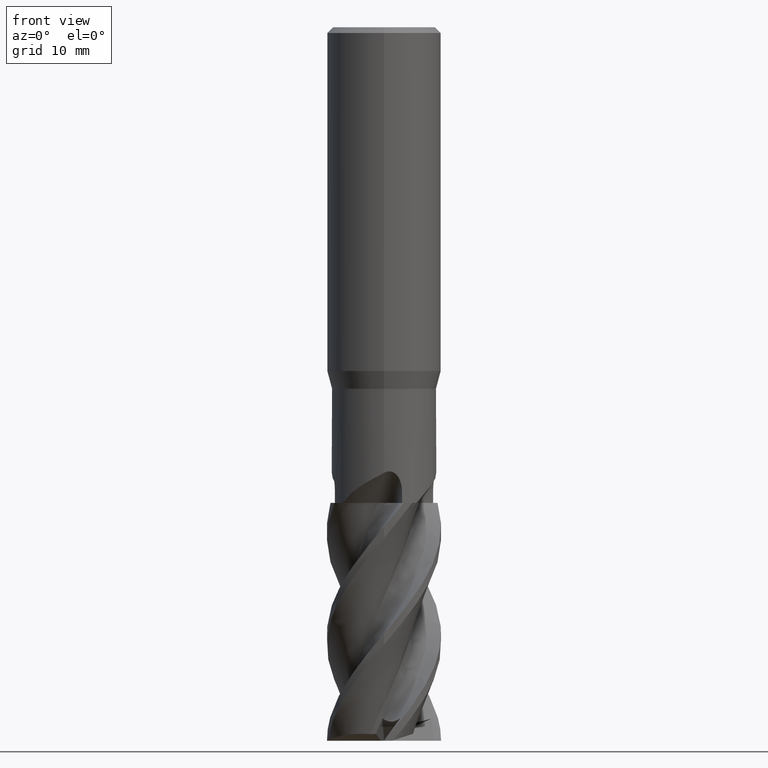
[diagram: clean part render]
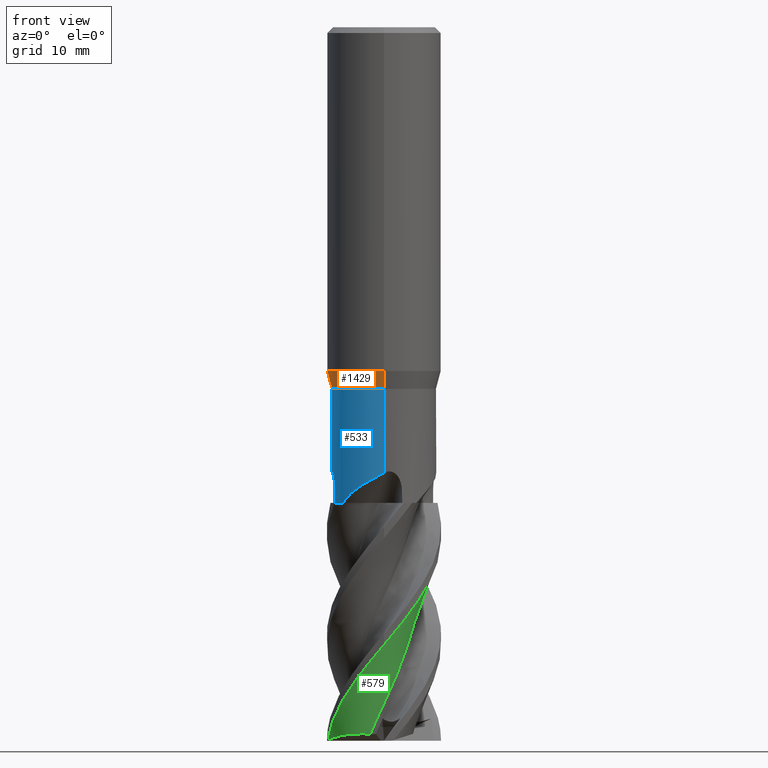
[diagram: same view with three faces highlighted in distinct colors, each labeled with its STEP entity id]
A machine part, front view with three faces highlighted in distinct colors.
Their STEP definitions:

[orange] entity #1429 — the highlighted conical surface has half-angle 15 deg.
#557=EDGE_CURVE('',#1365,#679,#1516,.T.);
#559=VERTEX_POINT('',#1518);
#679=VERTEX_POINT('',#1650);
#809=VERTEX_POINT('',#1795);
#817=EDGE_CURVE('',#559,#1365,#1803,.T.);
#1251=EDGE_CURVE('',#809,#679,#2277,.T.);
#1365=VERTEX_POINT('',#2404);
#1391=EDGE_CURVE('',#809,#559,#2430,.T.);
#1429=ADVANCED_FACE('',(#2470),#2471,.T.);
#1516=LINE('',#3291,#3292);
#1518=CARTESIAN_POINT('',(7.34757689261657E-016,-5.99995,-36.134));
#1650=CARTESIAN_POINT('',(0.0,5.49995,-38.0));
#1795=CARTESIAN_POINT('',(6.73527371570538E-016,-5.49995,-38.0));
#1803=CIRCLE('',#6341,5.99995);
#2277=CIRCLE('',#9145,5.49995);
#2404=CARTESIAN_POINT('',(0.0,5.99995,-36.134));
#2430=LINE('',#10435,#10436);
#2470=FACE_OUTER_BOUND('',#10652,.T.);
#2471=CONICAL_SURFACE('',#10653,5.74995,0.261802791304143);
#3291=CARTESIAN_POINT('',(-7.04142530416098E-016,5.74995,-37.067));
#3292=VECTOR('',#10712,1.0);
#6341=AXIS2_PLACEMENT_3D('',#11045,#11046,#11047);
#9145=AXIS2_PLACEMENT_3D('',#11542,#11543,#11544);
#10435=CARTESIAN_POINT('',(7.04142530416098E-016,-5.74995,-37.067));
#10436=VECTOR('',#11693,1.0);
#10652=EDGE_LOOP('',(#11716,#11717,#11718,#11719));
#10653=AXIS2_PLACEMENT_3D('',#11720,#11721,#11722);
#10712=DIRECTION('',(3.16955473055209E-017,-0.258822332634395,-0.965924945391561));
#11045=CARTESIAN_POINT('',(0.0,0.0,-36.134));
#11046=DIRECTION('',(0.0,0.0,-1.0));
#11047=DIRECTION('',(0.0,1.0,0.0));
#11542=CARTESIAN_POINT('',(0.0,0.0,-38.0));
#11543=DIRECTION('',(0.0,0.0,-1.0));
#11544=DIRECTION('',(0.0,1.0,0.0));
#11693=DIRECTION('',(3.16955473055209E-017,-0.258822332634395,0.965924945391561));
#11716=ORIENTED_EDGE('',*,*,#557,.T.);
#11717=ORIENTED_EDGE('',*,*,#1251,.F.);
#11718=ORIENTED_EDGE('',*,*,#1391,.T.);
#11719=ORIENTED_EDGE('',*,*,#817,.T.);
#11720=CARTESIAN_POINT('',(0.0,0.0,-37.067));
#11721=DIRECTION('',(-0.0,-0.0,1.0));
#11722=DIRECTION('',(0.0,1.0,0.0));

[blue] entity #533 — the highlighted cylindrical surface (partial cylindrical patch) has radius 5.5 mm, axis along (-0, -0, 1).
#501=EDGE_CURVE('',#825,#943,#1456,.T.);
#533=ADVANCED_FACE('',(#1490),#1491,.T.);
#613=VERTEX_POINT('',#1578);
#679=VERTEX_POINT('',#1650);
#703=EDGE_CURVE('',#943,#961,#1676,.T.);
#763=EDGE_CURVE('',#1069,#1011,#1744,.T.);
#795=EDGE_CURVE('',#1407,#1341,#1778,.T.);
#809=VERTEX_POINT('',#1795);
#825=VERTEX_POINT('',#1812);
#871=VERTEX_POINT('',#1861);
#905=EDGE_CURVE('',#1011,#1235,#1896,.T.);
#935=EDGE_CURVE('',#825,#613,#1928,.T.);
#943=VERTEX_POINT('',#1936);
#961=VERTEX_POINT('',#1957);
#979=EDGE_CURVE('',#1235,#613,#1975,.T.);
#1011=VERTEX_POINT('',#2010);
#1019=EDGE_CURVE('',#679,#1069,#2018,.T.);
#1069=VERTEX_POINT('',#2076);
#1121=EDGE_CURVE('',#961,#871,#2136,.T.);
#1217=EDGE_CURVE('',#1407,#871,#2243,.T.);
#1235=VERTEX_POINT('',#2261);
#1251=EDGE_CURVE('',#809,#679,#2277,.T.);
#1341=VERTEX_POINT('',#2375);
#1385=EDGE_CURVE('',#1341,#809,#2424,.T.);
#1407=VERTEX_POINT('',#2446);
#1456=B_SPLINE_CURVE_WITH_KNOTS('',3,(#2492,#2493,#2494,#2495,#2496,#2497,#2498,#2499),.UNSPECIFIED.,.F.,.F.,(4,2,2,4),(0.0,2.05260454001319,4.32936393877745,6.14717379635852),.UNSPECIFIED.);
#1490=FACE_OUTER_BOUND('',#3243,.T.);
#1491=CYLINDRICAL_SURFACE('',#3244,5.49995);
#1578=CARTESIAN_POINT('',(-1.90995452340342,5.15766649959367,-50.000000000002));
#1650=CARTESIAN_POINT('',(0.0,5.49995,-38.0));
#1676=B_SPLINE_CURVE_WITH_KNOTS('',3,(#4495,#4496,#4497,#4498,#4499,#4500,#4501,#4502,#4503,#4504,#4505,#4506,#4507,#4508),.UNSPECIFIED.,.F.,.F.,(4,2,2,2,2,2,4),(0.0,0.438540590585517,0.813840118689192,1.21334795034123,1.75962200363232,2.40906929027821,3.09416935348262),.UNSPECIFIED.);
#1744=B_SPLINE_CURVE_WITH_KNOTS('',3,(#5350,#5351,#5352,#5353,#5354,#5355,#5356,#5357),.UNSPECIFIED.,.F.,.F.,(4,2,2,4),(0.0,2.05260454001306,4.32936393877704,6.14717379635785),.UNSPECIFIED.);
#1778=B_SPLINE_CURVE_WITH_KNOTS('',3,(#5671,#5672,#5673,#5674,#5675,#5676,#5677,#5678),.UNSPECIFIED.,.F.,.F.,(4,2,2,4),(0.0,2.05260454001309,4.32936393877716,6.1471737963582),.UNSPECIFIED.);
#1795=CARTESIAN_POINT('',(6.73527371570538E-016,-5.49995,-38.0));
#1812=CARTESIAN_POINT('',(-3.40309082146235,4.32069703443538,-50.0));
#1861=CARTESIAN_POINT('',(-5.15766649959369,-1.90995452340336,-50.0));
#1896=B_SPLINE_CURVE_WITH_KNOTS('',3,(#6700,#6701,#6702,#6703,#6704,#6705,#6706,#6707,#6708,#6709,#6710,#6711,#6712,#6713),.UNSPECIFIED.,.F.,.F.,(4,2,2,2,2,2,4),(0.0,0.438540590585333,0.813840118688862,1.21334795034092,1.75962200363199,2.4090692902779,3.0941693534823),.UNSPECIFIED.);
#1928=CIRCLE('',#7036,5.49995);
#1936=CARTESIAN_POINT('',(-5.49844950323102,-0.128464247627501,-46.7799553798772));
#1957=CARTESIAN_POINT('',(-5.16624810003383,-1.88661881984592,-48.6801224118467));
#1975=B_SPLINE_CURVE_WITH_KNOTS('',3,(#7592,#7593,#7594,#7595),.UNSPECIFIED.,.F.,.F.,(4,4),(0.0,1.32008462748489),.UNSPECIFIED.);
#2010=CARTESIAN_POINT('',(-0.128464247627529,5.49844950323102,-46.7799553798772));
#2018=LINE('',#7767,#7768);
#2076=CARTESIAN_POINT('',(-2.77925433996061E-015,5.49994999999997,-46.8485761550256));
#2136=B_SPLINE_CURVE_WITH_KNOTS('',3,(#8289,#8290,#8291,#8292),.UNSPECIFIED.,.F.,.F.,(4,4),(0.0,1.32008462749297),.UNSPECIFIED.);
#2243=CIRCLE('',#8930,5.49995);
#2261=CARTESIAN_POINT('',(-1.88661881984595,5.16624810003382,-48.6801224118467));
#2277=CIRCLE('',#9145,5.49995);
#2375=CARTESIAN_POINT('',(4.33356657443583E-015,-5.49994999999999,-46.8485761550256));
#2424=LINE('',#10427,#10428);
#2446=CARTESIAN_POINT('',(-4.32069703443538,-3.40309082146235,-50.0));
#2492=CARTESIAN_POINT('',(-3.40309082146081,4.3206970344366,-50.0000000000019));
#2493=CARTESIAN_POINT('',(-3.78966601178926,4.01622058734344,-49.5246207553543));
#2494=CARTESIAN_POINT('',(-4.15871196733257,3.64320537147406,-49.1153642329935));
#2495=CARTESIAN_POINT('',(-4.8474864475272,2.67264667295675,-48.318435224457));
#2496=CARTESIAN_POINT('',(-5.13239437357896,2.08602911005882,-47.9625082932728));
#2497=CARTESIAN_POINT('',(-5.44672058306722,0.930284828555408,-47.330858510529));
#2498=CARTESIAN_POINT('',(-5.51081452140735,0.400775827371101,-47.0639981679338));
#2499=CARTESIAN_POINT('',(-5.49844950323102,-0.128464247627536,-46.7799553798772));
#3243=EDGE_LOOP('',(#10685,#10686,#10687,#10688,#10689,#10690,#10691,#10692,#10693,#10694,#10695,#10696));
#3244=AXIS2_PLACEMENT_3D('',#10697,#10698,#10699);
#4495=CARTESIAN_POINT('',(-5.49844950323088,-0.12846424763386,-46.7799553801384));
#4496=CARTESIAN_POINT('',(-5.4953011042546,-0.263220128012735,-46.7233904595447));
#4497=CARTESIAN_POINT('',(-5.48696421004083,-0.404945012029347,-46.6891570378781));
#4498=CARTESIAN_POINT('',(-5.45986639133504,-0.674472824829074,-46.6857818872239));
#4499=CARTESIAN_POINT('',(-5.44345431012151,-0.794853074811628,-46.7081008115535));
#4500=CARTESIAN_POINT('',(-5.40373016328144,-1.03174084036335,-46.801883908265));
#4501=CARTESIAN_POINT('',(-5.38108798590281,-1.14163485347547,-46.8740769644606));
#4502=CARTESIAN_POINT('',(-5.32778878251191,-1.37214841981411,-47.0820983841991));
#4503=CARTESIAN_POINT('',(-5.2975547198254,-1.48108462277344,-47.2306448038556));
#4504=CARTESIAN_POINT('',(-5.2408774699199,-1.6716191679484,-47.5772524868296));
#4505=CARTESIAN_POINT('',(-5.21525489996716,-1.74743997293689,-47.7849741002901));
#4506=CARTESIAN_POINT('',(-5.17856161147076,-1.85344704507501,-48.2184200132167));
#4507=CARTESIAN_POINT('',(-5.16784053812715,-1.88225814550732,-48.4497788411469));
#4508=CARTESIAN_POINT('',(-5.16624810006814,-1.886618819752,-48.6801224118474));
#5350=CARTESIAN_POINT('',(4.32069703443661,3.40309082146079,-50.0000000000019));
#5351=CARTESIAN_POINT('',(4.01622058734347,3.78966601178922,-49.5246207553544));
#5352=CARTESIAN_POINT('',(3.64320537147409,4.15871196733255,-49.1153642329935));
#5353=CARTESIAN_POINT('',(2.67264667295679,4.84748644752718,-48.3184352244571));
#5354=CARTESIAN_POINT('',(2.08602911005891,5.13239437357895,-47.9625082932729));
#5355=CARTESIAN_POINT('',(0.930284828555402,5.44672058306723,-47.330858510529));
#5356=CARTESIAN_POINT('',(0.400775827371077,5.51081452140736,-47.0639981679337));
#5357=CARTESIAN_POINT('',(-0.128464247627568,5.49844950323103,-46.7799553798772));
#5671=CARTESIAN_POINT('',(-4.32069703443664,-3.40309082146075,-50.000000000002));
#5672=CARTESIAN_POINT('',(-4.0162205873435,-3.78966601178918,-49.5246207553544));
#5673=CARTESIAN_POINT('',(-3.64320537147412,-4.15871196733252,-49.1153642329935));
#5674=CARTESIAN_POINT('',(-2.67264667295682,-4.84748644752717,-48.3184352244571));
#5675=CARTESIAN_POINT('',(-2.0860291100589,-5.13239437357893,-47.9625082932729));
#5676=CARTESIAN_POINT('',(-0.930284828555461,-5.44672058306721,-47.330858510529));
#5677=CARTESIAN_POINT('',(-0.400775827371127,-5.51081452140735,-47.0639981679338));
#5678=CARTESIAN_POINT('',(0.128464247627541,-5.49844950323102,-46.7799553798772));
#6700=CARTESIAN_POINT('',(-0.128464247633885,5.49844950323088,-46.7799553801384));
#6701=CARTESIAN_POINT('',(-0.263220128012704,5.4953011042546,-46.7233904595448));
#6702=CARTESIAN_POINT('',(-0.404945012029352,5.48696421004082,-46.6891570378781));
#6703=CARTESIAN_POINT('',(-0.674472824829131,5.45986639133502,-46.6857818872239));
#6704=CARTESIAN_POINT('',(-0.794853074811708,5.44345431012149,-46.7081008115536));
#6705=CARTESIAN_POINT('',(-1.03174084036337,5.40373016328144,-46.801883908265));
#6706=CARTESIAN_POINT('',(-1.14163485347548,5.3810879859028,-46.8740769644606));
#6707=CARTESIAN_POINT('',(-1.37214841981414,5.3277887825119,-47.0820983841991));
#6708=CARTESIAN_POINT('',(-1.48108462277348,5.29755471982539,-47.2306448038557));
#6709=CARTESIAN_POINT('',(-1.67161916794843,5.24087746991989,-47.5772524868296));
#6710=CARTESIAN_POINT('',(-1.74743997293692,5.21525489996715,-47.7849741002901));
#6711=CARTESIAN_POINT('',(-1.85344704507503,5.17856161147075,-48.2184200132167));
#6712=CARTESIAN_POINT('',(-1.88225814550734,5.16784053812714,-48.4497788411469));
#6713=CARTESIAN_POINT('',(-1.88661881975203,5.16624810006813,-48.6801224118474));
#7036=AXIS2_PLACEMENT_3D('',#11144,#11145,#11146);
#7592=CARTESIAN_POINT('',(-1.88661881984597,5.16624810003382,-48.6801224118468));
#7593=CARTESIAN_POINT('',(-1.89494737918482,5.1632066632916,-49.1200612821684));
#7594=CARTESIAN_POINT('',(-1.90273135105601,5.16034133921336,-49.5600386199855));
#7595=CARTESIAN_POINT('',(-1.90995452340342,5.15766649959367,-50.000000000002));
#7767=CARTESIAN_POINT('',(-6.73527371570538E-016,5.49995,-44.0));
#7768=VECTOR('',#11209,1.0);
#8289=CARTESIAN_POINT('',(-5.16624810003384,-1.88661881984595,-48.6801224118467));
#8290=CARTESIAN_POINT('',(-5.1632066632916,-1.89494737918485,-49.120061282171));
#8291=CARTESIAN_POINT('',(-5.16034133921337,-1.902731351056,-49.5600386199868));
#8292=CARTESIAN_POINT('',(-5.15766649959368,-1.90995452340339,-50.000000000002));
#8930=AXIS2_PLACEMENT_3D('',#11530,#11531,#11532);
#9145=AXIS2_PLACEMENT_3D('',#11542,#11543,#11544);
#10427=CARTESIAN_POINT('',(6.73527371570538E-016,-5.49995,-44.0));
#10428=VECTOR('',#11692,1.0);
#10685=ORIENTED_EDGE('',*,*,#1019,.T.);
#10686=ORIENTED_EDGE('',*,*,#763,.T.);
#10687=ORIENTED_EDGE('',*,*,#905,.T.);
#10688=ORIENTED_EDGE('',*,*,#979,.T.);
#10689=ORIENTED_EDGE('',*,*,#935,.F.);
#10690=ORIENTED_EDGE('',*,*,#501,.T.);
#10691=ORIENTED_EDGE('',*,*,#703,.T.);
#10692=ORIENTED_EDGE('',*,*,#1121,.T.);
#10693=ORIENTED_EDGE('',*,*,#1217,.F.);
#10694=ORIENTED_EDGE('',*,*,#795,.T.);
#10695=ORIENTED_EDGE('',*,*,#1385,.T.);
#10696=ORIENTED_EDGE('',*,*,#1251,.T.);
#10697=CARTESIAN_POINT('',(0.0,0.0,-44.0));
#10698=DIRECTION('',(-0.0,-0.0,1.0));
#10699=DIRECTION('',(0.0,1.0,0.0));
#11144=CARTESIAN_POINT('',(0.0,0.0,-50.0));
#11145=DIRECTION('',(0.0,0.0,-1.0));
#11146=DIRECTION('',(0.0,1.0,0.0));
#11209=DIRECTION('',(0.0,0.0,-1.0));
#11530=CARTESIAN_POINT('',(0.0,0.0,-50.0));
#11531=DIRECTION('',(0.0,0.0,-1.0));
#11532=DIRECTION('',(0.0,1.0,0.0));
#11542=CARTESIAN_POINT('',(0.0,0.0,-38.0));
#11543=DIRECTION('',(0.0,0.0,-1.0));
#11544=DIRECTION('',(0.0,1.0,0.0));
#11692=DIRECTION('',(-0.0,-0.0,1.0));

[green] entity #579 — the highlighted face is a freeform B-spline surface patch.
#507=EDGE_CURVE('',#1117,#667,#1462,.T.);
#547=VERTEX_POINT('',#1505);
#579=ADVANCED_FACE('',(#1540),#1541,.T.);
#667=VERTEX_POINT('',#1638);
#789=EDGE_CURVE('',#1301,#1039,#1772,.T.);
#843=EDGE_CURVE('',#971,#1117,#1831,.T.);
#875=EDGE_CURVE('',#1219,#547,#1865,.T.);
#971=VERTEX_POINT('',#1967);
#1039=VERTEX_POINT('',#2040);
#1061=EDGE_CURVE('',#667,#1219,#2067,.T.);
#1117=VERTEX_POINT('',#2132);
#1205=EDGE_CURVE('',#547,#1301,#2228,.T.);
#1219=VERTEX_POINT('',#2245);
#1301=VERTEX_POINT('',#2332);
#1419=EDGE_CURVE('',#971,#1039,#2459,.T.);
#1462=B_SPLINE_CURVE_WITH_KNOTS('',3,(#2514,#2515,#2516,#2517,#2518,#2519,#2520,#2521,#2522,#2523,#2524,#2525,#2526,#2527,#2528,#2529,#2530,#2531,#2532,#2533,#2534,#2535,#2536,#2537,#2538,#2539,#2540,#2541,#2542,#2543,#2544,#2545,#2546,#2547,#2548,#2549,#2550,#2551,#2552,#2553,#2554,#2555,#2556,#2557),.UNSPECIFIED.,.F.,.F.,(4,2,2,2,2,2,2,2,2,2,2,2,2,2,2,2,2,2,2,2,2,4),(0.0,1.37749315045641,4.10765177671446,5.30286308602918,7.20437856282853,7.84105240684516,9.36275775460885,11.4937231085125,12.7863763986183,15.3772386576201,16.476150201034,18.9986055672199,20.1458521792717,22.5992008753875,22.8529920299498,24.5194447010195,25.2609514613128,25.7962940672979,26.7250266765858,28.0846197101658,28.7667484867605,29.4599613557266),.UNSPECIFIED.);
#1505=CARTESIAN_POINT('',(5.19273183703704,2.97732271645397,-50.0));
#1540=FACE_OUTER_BOUND('',#3345,.T.);
#1541=B_SPLINE_SURFACE_WITH_KNOTS('',3,3,((#3346,#3347,#3348,#3349,#3350,#3351,#3352,#3353,#3354,#3355,#3356,#3357,#3358,#3359,#3360,#3361,#3362,#3363,#3364,#3365,#3366,#3367,#3368,#3369,#3370,#3371,#3372,#3373,#3374,#3375,#3376,#3377,#3378,#3379,#3380,#3381,#3382,#3383,#3384,#3385,#3386,#3387,#3388,#3389,#3390,#3391,#3392,#3393,#3394,#3395,#3396,#3397,#3398),(#3399,#3400,#3401,#3402,#3403,#3404,#3405,#3406,#3407,#3408,#3409,#3410,#3411,#3412,#3413,#3414,#3415,#3416,#3417,#3418,#3419,#3420,#3421,#3422,#3423,#3424,#3425,#3426,#3427,#3428,#3429,#3430,#3431,#3432,#3433,#3434,#3435,#3436,#3437,#3438,#3439,#3440,#3441,#3442,#3443,#3444,#3445,#3446,#3447,#3448,#3449,#3450,#3451),(#3452,#3453,#3454,#3455,#3456,#3457,#3458,#3459,#3460,#3461,#3462,#3463,#3464,#3465,#3466,#3467,#3468,#3469,#3470,#3471,#3472,#3473,#3474,#3475,#3476,#3477,#3478,#3479,#3480,#3481,#3482,#3483,#3484,#3485,#3486,#3487,#3488,#3489,#3490,#3491,#3492,#3493,#3494,#3495,#3496,#3497,#3498,#3499,#3500,#3501,#3502,#3503,#3504),(#3505,#3506,#3507,#3508,#3509,#3510,#3511,#3512,#3513,#3514,#3515,#3516,#3517,#3518,#3519,#3520,#3521,#3522,#3523,#3524,#3525,#3526,#3527,#3528,#3529,#3530,#3531,#3532,#3533,#3534,#3535,#3536,#3537,#3538,#3539,#3540,#3541,#3542,#3543,#3544,#3545,#3546,#3547,#3548,#3549,#3550,#3551,#3552,#3553,#3554,#3555,#3556,#3557),(#3558,#3559,#3560,#3561,#3562,#3563,#3564,#3565,#3566,#3567,#3568,#3569,#3570,#3571,#3572,#3573,#3574,#3575,#3576,#3577,#3578,#3579,#3580,#3581,#3582,#3583,#3584,#3585,#3586,#3587,#3588,#3589,#3590,#3591,#3592,#3593,#3594,#3595,#3596,#3597,#3598,#3599,#3600,#3601,#3602,#3603,#3604,#3605,#3606,#3607,#3608,#3609,#3610),(#3611,#3612,#3613,#3614,#3615,#3616,#3617,#3618,#3619,#3620,#3621,#3622,#3623,#3624,#3625,#3626,#3627,#3628,#3629,#3630,#3631,#3632,#3633,#3634,#3635,#3636,#3637,#3638,#3639,#3640,#3641,#3642,#3643,#3644,#3645,#3646,#3647,#3648,#3649,#3650,#3651,#3652,#3653,#3654,#3655,#3656,#3657,#3658,#3659,#3660,#3661,#3662,#3663),(#3664,#3665,#3666,#3667,#3668,#3669,#3670,#3671,#3672,#3673,#3674,#3675,#3676,#3677,#3678,#3679,#3680,#3681,#3682,#3683,#3684,#3685,#3686,#3687,#3688,#3689,#3690,#3691,#3692,#3693,#3694,#3695,#3696,#3697,#3698,#3699,#3700,#3701,#3702,#3703,#3704,#3705,#3706,#3707,#3708,#3709,#3710,#3711,#3712,#3713,#3714,#3715,#3716)),.UNSPECIFIED.,.F.,.F.,.F.,(4,1,1,1,4),(4,1,2,1,2,1,2,1,2,1,2,1,2,1,2,1,2,1,2,1,2,1,2,1,2,1,2,1,2,1,2,1,2,1,4),(-1.11221997676373,-0.834164982572797,-0.556109988381865,-0.278054994190932,0.0),(0.0,0.768307459309376,1.53661491861875,2.30492237792813,3.0732298372375,4.60984475585626,6.14645967447501,7.68307459309376,9.21968951171251,10.7563044303313,12.29291934895,13.8295342675688,15.3661491861875,16.9027641048063,18.439379023425,19.9759939420438,21.5126088606625,23.0492237792813,24.5858386979,26.1224536165188,27.6590685351375,29.1956834537563,30.732298372375,32.2689132909938,33.8055282096125,35.3421431282313,36.87875804685,38.4153729654688,39.9519878840875,41.4886028027063,43.025217721325,44.5618326399438,46.0984475585626,47.6350624771813,49.1716773958001),.UNSPECIFIED.);
#1638=CARTESIAN_POINT('',(4.41488359444724E-011,-5.99995970015771,-64.9250394281234));
#1772=B_SPLINE_CURVE_WITH_KNOTS('',3,(#5657,#5658,#5659,#5660,#5661,#5662,#5663,#5664),.UNSPECIFIED.,.F.,.F.,(4,2,2,4),(0.0,1.86474831701816,3.59477893039031,5.32475610849706),.UNSPECIFIED.);
#1831=B_SPLINE_CURVE_WITH_KNOTS('',3,(#6450,#6451,#6452,#6453,#6454,#6455,#6456,#6457,#6458,#6459),.UNSPECIFIED.,.F.,.F.,(4,2,2,2,4),(0.0,1.62662913287,3.21780246267589,4.29854843052144,5.46966036897869),.UNSPECIFIED.);
#1865=B_SPLINE_CURVE_WITH_KNOTS('',3,(#6538,#6539,#6540,#6541,#6542,#6543,#6544,#6545),.UNSPECIFIED.,.F.,.F.,(4,2,2,4),(0.0,1.86474831701816,3.59477893039031,5.32475610849706),.UNSPECIFIED.);
#1967=CARTESIAN_POINT('',(-1.4314609465633,-2.95834227675176,-74.3041753120862));
#2040=CARTESIAN_POINT('',(0.631988441931051,3.22503070359878,-50.0));
#2067=B_SPLINE_CURVE_WITH_KNOTS('',3,(#7836,#7837,#7838,#7839,#7840,#7841,#7842,#7843,#7844,#7845,#7846,#7847,#7848,#7849,#7850,#7851,#7852,#7853,#7854,#7855,#7856,#7857,#7858,#7859,#7860,#7861,#7862,#7863,#7864,#7865,#7866,#7867,#7868,#7869,#7870,#7871,#7872,#7873,#7874,#7875,#7876,#7877,#7878,#7879),.UNSPECIFIED.,.F.,.F.,(4,2,2,2,2,2,2,2,2,2,2,2,2,2,2,2,2,2,2,2,2,4),(0.0,1.37749315045641,4.10765177671446,5.30286308602918,7.20437856282853,7.84105240684516,9.36275775460885,11.4937231085125,12.7863763986183,15.3772386576201,16.476150201034,18.9986055672199,20.1458521792717,22.5992008753875,22.8529920299498,24.5194447010195,25.2609514613128,25.7962940672979,26.7250266765858,28.0846197101658,28.7667484867605,29.4599613557266),.UNSPECIFIED.);
#2132=CARTESIAN_POINT('',(-5.91389867551491,-1.01281755456972,-74.9363146138314));
#2228=B_SPLINE_CURVE_WITH_KNOTS('',3,(#8532,#8533,#8534,#8535,#8536,#8537,#8538,#8539),.UNSPECIFIED.,.F.,.F.,(4,2,2,4),(0.0,1.86474831701816,3.59477893039031,5.32475610849706),.UNSPECIFIED.);
#2245=CARTESIAN_POINT('',(5.21801877183722,2.96160093644537,-50.0));
#2332=CARTESIAN_POINT('',(3.81598190034358,3.55319630982955,-50.0));
#2459=B_SPLINE_CURVE_WITH_KNOTS('',3,(#10555,#10556,#10557,#10558,#10559,#10560,#10561,#10562,#10563,#10564,#10565,#10566,#10567,#10568,#10569,#10570,#10571,#10572,#10573,#10574,#10575,#10576,#10577,#10578,#10579,#10580,#10581,#10582,#10583,#10584,#10585,#10586,#10587,#10588,#10589,#10590,#10591,#10592,#10593,#10594,#10595,#10596,#10597,#10598,#10599,#10600,#10601,#10602,#10603,#10604,#10605,#10606,#10607),.UNSPECIFIED.,.F.,.F.,(4,1,2,1,2,1,2,1,2,1,2,1,2,1,2,1,2,1,2,1,2,1,2,1,2,1,2,1,2,1,2,1,2,1,4),(0.0,0.768307459309376,1.53661491861875,2.30492237792813,3.0732298372375,4.60984475585626,6.14645967447501,7.68307459309376,9.21968951171251,10.7563044303313,12.29291934895,13.8295342675688,15.3661491861875,16.9027641048063,18.439379023425,19.9759939420438,21.5126088606625,23.0492237792813,24.5858386979,26.1224536165188,27.6590685351375,29.1956834537563,30.732298372375,32.2689132909938,33.8055282096125,35.3421431282313,36.87875804685,38.4153729654688,39.9519878840875,41.4886028027063,43.025217721325,44.5618326399438,46.0984475585626,47.6350624771813,49.1716773958001),.UNSPECIFIED.);
#2514=CARTESIAN_POINT('',(-5.92277612579608,-0.959543101533179,-75.0));
#2515=CARTESIAN_POINT('',(-5.87530496678786,-1.25254988680693,-74.6496780853165));
#2516=CARTESIAN_POINT('',(-5.80650935194019,-1.54081016323731,-74.3034074520007));
#2517=CARTESIAN_POINT('',(-5.5347242834975,-2.39144873471892,-73.2360784533484));
#2518=CARTESIAN_POINT('',(-5.2702235142148,-2.92988914654286,-72.5143442297414));
#2519=CARTESIAN_POINT('',(-4.77840208840431,-3.63808033443682,-71.500570073431));
#2520=CARTESIAN_POINT('',(-4.61403818305261,-3.84474757921777,-71.1902800493454));
#2521=CARTESIAN_POINT('',(-4.14688116113043,-4.3571113806385,-70.3616757258024));
#2522=CARTESIAN_POINT('',(-3.82726242182344,-4.64040805817174,-69.8477033140741));
#2523=CARTESIAN_POINT('',(-3.36392995493521,-4.97031698423452,-69.1689747249401));
#2524=CARTESIAN_POINT('',(-3.24438382409105,-5.04919138280623,-68.9989823769693));
#2525=CARTESIAN_POINT('',(-2.82837046095111,-5.3026368202618,-68.4247073736453));
#2526=CARTESIAN_POINT('',(-2.51984811946614,-5.45626672499888,-68.0204133449998));
#2527=CARTESIAN_POINT('',(-1.74342039564066,-5.76168642073547,-67.020260198159));
#2528=CARTESIAN_POINT('',(-1.268390566401,-5.88489123360847,-66.4303721442621));
#2529=CARTESIAN_POINT('',(-0.486121371798172,-5.98765173675094,-65.4980822519184));
#2530=CARTESIAN_POINT('',(-0.189636456627477,-6.00446413919061,-65.1517281193763));
#2531=CARTESIAN_POINT('',(0.711622019900536,-5.98788077977597,-64.0752023077897));
#2532=CARTESIAN_POINT('',(1.31074944180252,-5.88642493016331,-63.344199020911));
#2533=CARTESIAN_POINT('',(2.13152988429419,-5.61447130423478,-62.3271510623217));
#2534=CARTESIAN_POINT('',(2.37143731800115,-5.5176434158059,-62.0233000673752));
#2535=CARTESIAN_POINT('',(3.14950281434029,-5.14218581786756,-60.9911519199748));
#2536=CARTESIAN_POINT('',(3.65188469954842,-4.79923357917633,-60.2595201125533));
#2537=CARTESIAN_POINT('',(4.29816438012782,-4.19541199194893,-59.2199096788925));
#2538=CARTESIAN_POINT('',(4.48827190551416,-3.99177287648694,-58.8919613995155));
#2539=CARTESIAN_POINT('',(5.04502455586107,-3.30317368478145,-57.8324463970487));
#2540=CARTESIAN_POINT('',(5.35403270280949,-2.77620208274149,-57.0983819524417));
#2541=CARTESIAN_POINT('',(5.60227199338773,-2.14887218714385,-56.3079505756887));
#2542=CARTESIAN_POINT('',(5.62503366682092,-2.08864114149168,-56.2323206769027));
#2543=CARTESIAN_POINT('',(5.79314179150729,-1.62022050419552,-55.6454394831727));
#2544=CARTESIAN_POINT('',(5.89386443565268,-1.20152027016965,-55.1290660358205));
#2545=CARTESIAN_POINT('',(5.9738711508175,-0.589878308085498,-54.3877837044071));
#2546=CARTESIAN_POINT('',(5.98961480321692,-0.399971566349683,-54.1594514275878));
#2547=CARTESIAN_POINT('',(6.00107448080089,-0.0713566009432702,-53.7677854560155));
#2548=CARTESIAN_POINT('',(6.00114715071783,0.0670513855631909,-53.6038570123172));
#2549=CARTESIAN_POINT('',(5.98811307008073,0.446665262381291,-53.1571118567217));
#2550=CARTESIAN_POINT('',(5.96543815222129,0.687507065675482,-52.873157115393));
#2551=CARTESIAN_POINT('',(5.87175950914454,1.28464562867237,-52.1517715309372));
#2552=CARTESIAN_POINT('',(5.78444077257275,1.63320261946642,-51.7195593019661));
#2553=CARTESIAN_POINT('',(5.60775227642329,2.1410843425023,-51.0747578337037));
#2554=CARTESIAN_POINT('',(5.54092517716138,2.30861879646048,-50.8594799958195));
#2555=CARTESIAN_POINT('',(5.3905455730287,2.64095486617206,-50.4272261494789));
#2556=CARTESIAN_POINT('',(5.30828690536549,2.80256005101302,-50.2158377443726));
#2557=CARTESIAN_POINT('',(5.21801877183729,2.9616009364453,-50.0));
#3345=EDGE_LOOP('',(#10741,#10742,#10743,#10744,#10745,#10746,#10747));
#3346=CARTESIAN_POINT('',(-0.255456907115684,6.23476878219928,-87.0));
#3347=CARTESIAN_POINT('',(-0.24818962502795,6.23452129636517,-86.7447960134046));
#3348=CARTESIAN_POINT('',(-0.379122830376896,6.23167636541566,-86.2344157903515));
#3349=CARTESIAN_POINT('',(-0.807810325418608,6.19228756367285,-85.724039144369));
#3350=CARTESIAN_POINT('',(-1.37605404217045,6.09068235702555,-85.2135832282896));
#3351=CARTESIAN_POINT('',(-1.89327674262271,5.9586444253405,-84.7031159440314));
#3352=CARTESIAN_POINT('',(-2.31824239959861,5.79526592368941,-84.1926811157864));
#3353=CARTESIAN_POINT('',(-2.89979592085173,5.53978254907979,-83.4270835167761));
#3354=CARTESIAN_POINT('',(-3.64096185824542,5.1207154326029,-82.4062854075879));
#3355=CARTESIAN_POINT('',(-4.30994401933451,4.53315211667518,-81.3854690165651));
#3356=CARTESIAN_POINT('',(-4.92754313796969,3.85273069981532,-80.3646129461837));
#3357=CARTESIAN_POINT('',(-5.45125513216027,3.1272789574805,-79.3437532233732));
#3358=CARTESIAN_POINT('',(-5.80972097332345,2.31623922368928,-78.3229237138696));
#3359=CARTESIAN_POINT('',(-6.08294875186741,1.45465148609144,-77.302097791314));
#3360=CARTESIAN_POINT('',(-6.25723074744914,0.584498879710765,-76.2812627912643));
#3361=CARTESIAN_POINT('',(-6.24710808042734,-0.303867325069469,-75.2604360911737));
#3362=CARTESIAN_POINT('',(-6.13773431351154,-1.2030269094897,-74.2395997614165));
#3363=CARTESIAN_POINT('',(-5.9346818057767,-2.06723273603949,-73.2187573137753));
#3364=CARTESIAN_POINT('',(-5.5568150204803,-2.87063905827029,-72.1979303105098));
#3365=CARTESIAN_POINT('',(-5.0838374594509,-3.64330562384705,-71.1770969230358));
#3366=CARTESIAN_POINT('',(-4.5399883027293,-4.34543864069807,-70.1562563566883));
#3367=CARTESIAN_POINT('',(-3.86240126550242,-4.91940202954699,-69.1354293143347));
#3368=CARTESIAN_POINT('',(-3.11139029044888,-5.42570396546365,-68.1145952549118));
#3369=CARTESIAN_POINT('',(-2.32523286095162,-5.83844689230214,-67.093754312327));
#3370=CARTESIAN_POINT('',(-1.47053091556519,-6.07916501541645,-66.0729273145315));
#3371=CARTESIAN_POINT('',(-0.577012640077334,-6.22784944052524,-65.0520933829256));
#3372=CARTESIAN_POINT('',(0.309611808069769,-6.27681125662408,-64.0312524973728));
#3373=CARTESIAN_POINT('',(1.18708824214252,-6.1408082333425,-63.0104254789602));
#3374=CARTESIAN_POINT('',(2.06161986601423,-5.90497848251103,-61.9895915265731));
#3375=CARTESIAN_POINT('',(2.8884749046431,-5.58130087569318,-60.9687506357341));
#3376=CARTESIAN_POINT('',(3.6302118770026,-5.09315887845937,-59.947923618584));
#3377=CARTESIAN_POINT('',(4.32781703491865,-4.51542270839299,-58.927089659937));
#3378=CARTESIAN_POINT('',(4.94556905493644,-3.8775710612737,-57.9062487685258));
#3379=CARTESIAN_POINT('',(5.41758758130208,-3.12545111576988,-56.8854217404183));
#3380=CARTESIAN_POINT('',(5.81224828262941,-2.310153049746,-55.8645877534202));
#3381=CARTESIAN_POINT('',(6.10929178322409,-1.4733453123942,-54.8437468363206));
#3382=CARTESIAN_POINT('',(6.22630571098211,-0.593130351550053,-53.8229198638471));
#3383=CARTESIAN_POINT('',(6.24671203501039,0.31243147259186,-52.8020860044112));
#3384=CARTESIAN_POINT('',(6.16938473022356,1.19705400589534,-51.7812451748964));
#3385=CARTESIAN_POINT('',(5.91024100601995,2.04639866267765,-50.760417975733));
#3386=CARTESIAN_POINT('',(5.55269669066652,2.87864655197867,-49.7395836393127));
#3387=CARTESIAN_POINT('',(5.11498684646327,3.65117188599569,-48.7187425422277));
#3388=CARTESIAN_POINT('',(4.52652172187685,4.31617626702344,-47.6979162599283));
#3389=CARTESIAN_POINT('',(3.85550275575267,4.92485956015507,-46.6770837126543));
#3390=CARTESIAN_POINT('',(3.13629341720834,5.44589394630914,-45.656243457064));
#3391=CARTESIAN_POINT('',(2.32540783241081,5.80608677852783,-44.635413941153));
#3392=CARTESIAN_POINT('',(1.46371549020366,6.0807764230869,-43.6145754069354));
#3393=CARTESIAN_POINT('',(0.593601218951799,6.25647449538887,-42.5937322253886));
#3394=CARTESIAN_POINT('',(-0.298395046580708,6.24758743041156,-41.5729105570231));
#3395=CARTESIAN_POINT('',(-1.2042902884538,6.13779071617352,-40.5520865116154));
#3396=CARTESIAN_POINT('',(-2.06818079472336,5.93358367146781,-39.5312505559625));
#3397=CARTESIAN_POINT('',(-2.85517775509931,5.56382858185723,-38.5104304073142));
#3398=CARTESIAN_POINT('',(-3.23106430963892,5.33604546708767,-38.0000208165174));
#3399=CARTESIAN_POINT('',(-0.644264769102904,6.02362291025007,-87.0));
#3400=CARTESIAN_POINT('',(-0.636559383736454,6.02256869448884,-86.7447929308865));
#3401=CARTESIAN_POINT('',(-0.762258580480236,6.00976556788334,-86.2345008911166));
#3402=CARTESIAN_POINT('',(-1.17480783433263,5.94435746738438,-85.7242397020338));
#3403=CARTESIAN_POINT('',(-1.71911444149116,5.81056491650841,-85.2136940585559));
#3404=CARTESIAN_POINT('',(-2.2119607448298,5.65027709598019,-84.7031020583765));
#3405=CARTESIAN_POINT('',(-2.61316125927226,5.46510723168188,-84.1926185525412));
#3406=CARTESIAN_POINT('',(-3.15994653591149,5.18063585253551,-83.4270866805369));
#3407=CARTESIAN_POINT('',(-3.850843720898,4.72760649442664,-82.4063776779067));
#3408=CARTESIAN_POINT('',(-4.46134843091758,4.11615464751925,-81.3856080571966));
#3409=CARTESIAN_POINT('',(-5.01640067720894,3.418088177017,-80.3646980238808));
#3410=CARTESIAN_POINT('',(-5.47749483936712,2.68230844249807,-79.3437739181452));
#3411=CARTESIAN_POINT('',(-5.77307423532388,1.87415753978044,-78.322954803578));
#3412=CARTESIAN_POINT('',(-5.98304196031761,1.02245080257417,-77.3021486311697));
#3413=CARTESIAN_POINT('',(-6.09651644899284,0.168748148725281,-76.2813109470448));
#3414=CARTESIAN_POINT('',(-6.03027565659626,-0.690864401800581,-75.2605026339307));
#3415=CARTESIAN_POINT('',(-5.86735396687789,-1.55470447781145,-74.2396604516534));
#3416=CARTESIAN_POINT('',(-5.6158090982956,-2.37867265731249,-73.2187967323816));
#3417=CARTESIAN_POINT('',(-5.19885467694145,-3.1326462677876,-72.1979871055005));
#3418=CARTESIAN_POINT('',(-4.6918267164477,-3.85093645289866,-71.1771551010428));
#3419=CARTESIAN_POINT('',(-4.12056447208833,-4.49630464374027,-70.1562979797893));
#3420=CARTESIAN_POINT('',(-3.42795291312766,-5.0090546288042,-69.1354882345568));
#3421=CARTESIAN_POINT('',(-2.66855453284496,-5.45176267799323,-68.1146539727413));
#3422=CARTESIAN_POINT('',(-1.88103624581397,-5.80149605959748,-67.0937954802329));
#3423=CARTESIAN_POINT('',(-1.03808737750465,-5.9802929181763,-66.0729859191212));
#3424=CARTESIAN_POINT('',(-0.163351535979088,-6.06763959725034,-65.0521520549795));
#3425=CARTESIAN_POINT('',(0.698340528758804,-6.05871455388066,-64.0312937936986));
#3426=CARTESIAN_POINT('',(1.53940813650588,-5.87126467831094,-63.0104841451194));
#3427=CARTESIAN_POINT('',(2.37138066065287,-5.58743969356189,-61.9896502264644));
#3428=CARTESIAN_POINT('',(3.15151529021942,-5.22145943660409,-60.9687919385566));
#3429=CARTESIAN_POINT('',(3.83876567082379,-4.70163829543403,-59.9479823023402));
#3430=CARTESIAN_POINT('',(4.47772237862371,-4.09791698524093,-58.9271483436933));
#3431=CARTESIAN_POINT('',(5.03540447838251,-3.44098683780513,-57.9062900471163));
#3432=CARTESIAN_POINT('',(5.44469987073531,-2.6826780230876,-56.885480369494));
#3433=CARTESIAN_POINT('',(5.77521607501031,-1.86809954211742,-55.8646463487637));
#3434=CARTESIAN_POINT('',(6.00969139060433,-1.03888482068851,-54.8437880042626));
#3435=CARTESIAN_POINT('',(6.06707773788657,-0.179089854505177,-53.82297853644));
#3436=CARTESIAN_POINT('',(6.02943249518574,0.699177220466099,-52.8021448119325));
#3437=CARTESIAN_POINT('',(5.89834013377801,1.55090604455564,-51.7812865988539));
#3438=CARTESIAN_POINT('',(5.59343392244033,2.35690851553406,-50.760476361458));
#3439=CARTESIAN_POINT('',(5.19441746676445,3.14021623475657,-49.7396414178598));
#3440=CARTESIAN_POINT('',(4.72146376579761,3.86049334167646,-48.7187830282669));
#3441=CARTESIAN_POINT('',(4.10936964762662,4.46706551611628,-47.6979758307098));
#3442=CARTESIAN_POINT('',(3.42094802790278,5.01399539235159,-46.677145577219));
#3443=CARTESIAN_POINT('',(2.69137932255211,5.47285091769004,-45.6562872426776));
#3444=CARTESIAN_POINT('',(1.88326901184778,5.77012123486869,-44.6354696690374));
#3445=CARTESIAN_POINT('',(1.03136759463036,5.9815032762112,-43.6146246582556));
#3446=CARTESIAN_POINT('',(0.177612375294721,6.09635166590034,-42.593767519821));
#3447=CARTESIAN_POINT('',(-0.685601543005372,6.03109689602283,-41.5729769428281));
#3448=CARTESIAN_POINT('',(-1.55596043483738,5.86737487670174,-40.5521648385855));
#3449=CARTESIAN_POINT('',(-2.37955616654289,5.61473102260134,-39.5312979560088));
#3450=CARTESIAN_POINT('',(-3.11807079620751,5.20659589049804,-38.5104784667984));
#3451=CARTESIAN_POINT('',(-3.46758207478382,4.96212906355335,-38.0000729913183));
#3452=CARTESIAN_POINT('',(-1.36278193073814,5.49260081809676,-87.0));
#3453=CARTESIAN_POINT('',(-1.35397473701795,5.49005576346828,-86.7447872227641));
#3454=CARTESIAN_POINT('',(-1.46642108189552,5.45880125177212,-86.234658479114));
#3455=CARTESIAN_POINT('',(-1.83941775420694,5.34587116425016,-85.7246110895127));
#3456=CARTESIAN_POINT('',(-2.32684958558498,5.15440258301631,-85.2138992922022));
#3457=CARTESIAN_POINT('',(-2.76304391722341,4.94443611639757,-84.7030763451614));
#3458=CARTESIAN_POINT('',(-3.1106214114347,4.72233298619533,-84.192502698816));
#3459=CARTESIAN_POINT('',(-3.57976560807039,4.3896134988172,-83.4270925401637));
#3460=CARTESIAN_POINT('',(-4.16063100841009,3.88272356458002,-82.4065485438996));
#3461=CARTESIAN_POINT('',(-4.64750501342466,3.23985360815511,-81.3858655246386));
#3462=CARTESIAN_POINT('',(-5.0725344896571,2.5239935860348,-80.3648555736904));
#3463=CARTESIAN_POINT('',(-5.40551060050867,1.78507351349183,-79.3438122275737));
#3464=CARTESIAN_POINT('',(-5.57613151944842,1.00028971000923,-78.3230123953023));
#3465=CARTESIAN_POINT('',(-5.66234944157906,0.186038176821416,-77.3022427547619));
#3466=CARTESIAN_POINT('',(-5.65881625758303,-0.617758014077386,-76.2814001343674));
#3467=CARTESIAN_POINT('',(-5.48838750274791,-1.4041696144441,-75.2606258497167));
#3468=CARTESIAN_POINT('',(-5.22825457893548,-2.18239660532418,-74.2397728430451));
#3469=CARTESIAN_POINT('',(-4.89098462537873,-2.91232998870674,-73.2188697339932));
#3470=CARTESIAN_POINT('',(-4.40968558073987,-3.55651019481999,-72.1980922563464));
#3471=CARTESIAN_POINT('',(-3.84976970277809,-4.15652905563145,-71.1772628545917));
#3472=CARTESIAN_POINT('',(-3.23956157131417,-4.68070579776096,-70.1563750033405));
#3473=CARTESIAN_POINT('',(-2.53402424510905,-5.066832804293,-69.1355974271993));
#3474=CARTESIAN_POINT('',(-1.77563954219516,-5.38001354311114,-68.1147626195941));
#3475=CARTESIAN_POINT('',(-1.00302381365668,-5.60335366344039,-67.0938717466774));
#3476=CARTESIAN_POINT('',(-0.200899663083599,-5.66160172439233,-66.0730944619905));
#3477=CARTESIAN_POINT('',(0.619116689175123,-5.63153274790492,-65.0522606823519));
#3478=CARTESIAN_POINT('',(1.41475522558078,-5.51381364689661,-64.0313702532546));
#3479=CARTESIAN_POINT('',(2.16861890548017,-5.23365909911621,-63.0105928260725));
#3480=CARTESIAN_POINT('',(2.90205302077809,-4.86575259813717,-61.9897588813128));
#3481=CARTESIAN_POINT('',(3.57691929866043,-4.42823934186155,-60.9688684273201));
#3482=CARTESIAN_POINT('',(4.14634122236263,-3.86030341740301,-59.9480910056013));
#3483=CARTESIAN_POINT('',(4.66073881842217,-3.22101877475551,-58.9272569789361));
#3484=CARTESIAN_POINT('',(5.09295084630381,-2.54273553719605,-57.9063664789291));
#3485=CARTESIAN_POINT('',(5.37507533945071,-1.7895936444363,-56.8855889853762));
#3486=CARTESIAN_POINT('',(5.57751035521304,-0.994395878751482,-55.8647548064188));
#3487=CARTESIAN_POINT('',(5.68897952009767,-0.197867111278192,-54.8438642717224));
#3488=CARTESIAN_POINT('',(5.63282843750387,0.604411751940193,-53.8230871657392));
#3489=CARTESIAN_POINT('',(5.48672045122994,1.41185474100154,-52.8022537296478));
#3490=CARTESIAN_POINT('',(5.25730410335151,2.18276110095035,-51.7813632865298));
#3491=CARTESIAN_POINT('',(4.873000620575,2.8892835649373,-50.7605845001276));
#3492=CARTESIAN_POINT('',(4.40473304259362,3.56311596410755,-49.73974838957));
#3493=CARTESIAN_POINT('',(3.87590933955976,4.16904402838513,-48.7188580224402));
#3494=CARTESIAN_POINT('',(3.2329035259205,4.65214856555732,-47.6980861177592));
#3495=CARTESIAN_POINT('',(2.52695116647872,5.07071033809154,-46.6772601613969));
#3496=CARTESIAN_POINT('',(1.79405661447928,5.40231689743965,-45.6563683086654));
#3497=CARTESIAN_POINT('',(1.00909637150179,5.57452487155745,-44.6355728703633));
#3498=CARTESIAN_POINT('',(0.194483333754041,5.66203679028418,-43.6147158550516));
#3499=CARTESIAN_POINT('',(-0.609535427978694,5.6597677498065,-42.5938329187393));
#3500=CARTESIAN_POINT('',(-1.3994212058307,5.48983392775552,-41.5730997973291));
#3501=CARTESIAN_POINT('',(-2.18362778839757,5.22820656414846,-40.5523099598976));
#3502=CARTESIAN_POINT('',(-2.91309002276944,4.88996471729979,-39.5313856921503));
#3503=CARTESIAN_POINT('',(-3.54390981480184,4.41863427407539,-38.5105674614751));
#3504=CARTESIAN_POINT('',(-3.83600670259783,4.14817902933257,-38.0001696074348));
#3505=CARTESIAN_POINT('',(-2.18052754521096,4.43078516068051,-87.0));
#3506=CARTESIAN_POINT('',(-2.16951720697794,4.42654337991509,-86.7447806884539));
#3507=CARTESIAN_POINT('',(-2.25524977880597,4.37413132566905,-86.2348388741737));
#3508=CARTESIAN_POINT('',(-2.55162724984047,4.20894100402673,-85.725036227225));
#3509=CARTESIAN_POINT('',(-2.93327293354587,3.95769855824277,-85.2141342282759));
#3510=CARTESIAN_POINT('',(-3.26729554121201,3.69940203797466,-84.7030469101806));
#3511=CARTESIAN_POINT('',(-3.52231842528661,3.44610578966421,-84.1923700790939));
#3512=CARTESIAN_POINT('',(-3.85960490843518,3.07576221592568,-83.4270992455014));
#3513=CARTESIAN_POINT('',(-4.25958061794819,2.53649007429345,-82.4067441386528));
#3514=CARTESIAN_POINT('',(-4.55519066403538,1.89920882568294,-81.386160257245));
#3515=CARTESIAN_POINT('',(-4.78534623156464,1.21122187905253,-80.3650359225455));
#3516=CARTESIAN_POINT('',(-4.93222953659021,0.520526640037339,-79.3438560889412));
#3517=CARTESIAN_POINT('',(-4.93222992443728,-0.179098565209988,-78.3230783097202));
#3518=CARTESIAN_POINT('',(-4.85537164119975,-0.888368230525458,-77.302350512964));
#3519=CARTESIAN_POINT('',(-4.70361427593992,-1.57199883259345,-76.2815022224304));
#3520=CARTESIAN_POINT('',(-4.41304456007484,-2.20992317121059,-75.2607668999379));
#3521=CARTESIAN_POINT('',(-4.04794485161313,-2.82463216484678,-74.2399014987278));
#3522=CARTESIAN_POINT('',(-3.62574377807752,-3.38362955209595,-73.2189532905667));
#3523=CARTESIAN_POINT('',(-3.09684195161069,-3.84294694415684,-72.1982126478264));
#3524=CARTESIAN_POINT('',(-2.50933958323546,-4.25059181551267,-71.177386180527));
#3525=CARTESIAN_POINT('',(-1.89285757403886,-4.58392331698869,-70.1564632116128));
#3526=CARTESIAN_POINT('',(-1.22081479747448,-4.78208472621012,-69.1357223707619));
#3527=CARTESIAN_POINT('',(-0.517226991733261,-4.90885041078421,-68.1148870427848));
#3528=CARTESIAN_POINT('',(0.181848708469698,-4.95601499941238,-67.0939590305666));
#3529=CARTESIAN_POINT('',(0.87544882849854,-4.85719153745078,-66.0732187024776));
#3530=CARTESIAN_POINT('',(1.5681891993242,-4.68029170944836,-65.0523850425036));
#3531=CARTESIAN_POINT('',(2.22375340248011,-4.43284465679748,-64.0314577888883));
#3532=CARTESIAN_POINT('',(2.81366008327091,-4.05487877670652,-63.0107172040133));
#3533=CARTESIAN_POINT('',(3.3703388619246,-3.60626623941885,-61.9898832935343));
#3534=CARTESIAN_POINT('',(3.86390944581693,-3.10891834789346,-60.9689559846998));
#3535=CARTESIAN_POINT('',(4.24356155383957,-2.52009839387484,-59.9482154118476));
#3536=CARTESIAN_POINT('',(4.56364917347276,-1.88080565136722,-58.9273813659453));
#3537=CARTESIAN_POINT('',(4.80608851110105,-1.22338647801616,-57.9064539721368));
#3538=CARTESIAN_POINT('',(4.90690700576723,-0.530061946638324,-56.8857132923161));
#3539=CARTESIAN_POINT('',(4.93257577253366,0.184441418729426,-55.8648789894178));
#3540=CARTESIAN_POINT('',(4.88007762374477,0.883173787884316,-54.8439515613004));
#3541=CARTESIAN_POINT('',(4.68384123035859,1.55573970036388,-53.8232115197049));
#3542=CARTESIAN_POINT('',(4.41044757684606,2.21636364759969,-52.8023784076324));
#3543=CARTESIAN_POINT('',(4.07248678540754,2.83020390145736,-51.7814510703253));
#3544=CARTESIAN_POINT('',(3.61462167714028,3.36054167230091,-50.7607082977438));
#3545=CARTESIAN_POINT('',(3.09154310449547,3.84794974811125,-49.7398708346265));
#3546=CARTESIAN_POINT('',(2.52921646732447,4.26593345246718,-48.7189438620703));
#3547=CARTESIAN_POINT('',(1.8924626761336,4.55821776450158,-47.6982123911057));
#3548=CARTESIAN_POINT('',(1.21408114983476,4.78440055593996,-46.6773913042205));
#3549=CARTESIAN_POINT('',(0.528785966140917,4.93109151670907,-45.6564611374976));
#3550=CARTESIAN_POINT('',(-0.171285943112382,4.93243975612421,-44.635690971662));
#3551=CARTESIAN_POINT('',(-0.881108212908695,4.85663324979944,-43.6148202865298));
#3552=CARTESIAN_POINT('',(-1.56516140234087,4.70591170474056,-42.5939077371611));
#3553=CARTESIAN_POINT('',(-2.20617423534244,4.41518090972931,-41.5732404870772));
#3554=CARTESIAN_POINT('',(-2.82579924289987,4.04780763890839,-40.55247602932));
#3555=CARTESIAN_POINT('',(-3.38423542267663,3.62485861317801,-39.5314861503655));
#3556=CARTESIAN_POINT('',(-3.83369268369233,3.10671904291762,-38.510669342378));
#3557=CARTESIAN_POINT('',(-4.03227292942023,2.82241889405212,-38.0002802065128));
#3558=CARTESIAN_POINT('',(-2.67543318983508,3.18529216413257,-87.0));
#3559=CARTESIAN_POINT('',(-2.66183859916031,3.1800235133001,-86.7447766841444));
#3560=CARTESIAN_POINT('',(-2.71607598002662,3.11459854604359,-86.2349494268253));
#3561=CARTESIAN_POINT('',(-2.92443229911408,2.92018457765295,-85.7252967656934));
#3562=CARTESIAN_POINT('',(-3.18794749137707,2.64049896327807,-85.2142782059848));
#3563=CARTESIAN_POINT('',(-3.41045628146354,2.36377160178563,-84.7030288711299));
#3564=CARTESIAN_POINT('',(-3.5679168245382,2.10588373788836,-84.1922888049446));
#3565=CARTESIAN_POINT('',(-3.76808190182586,1.73555220823058,-83.4271033551061));
#3566=CARTESIAN_POINT('',(-3.98522573600053,1.21479062657387,-82.4068640072537));
#3567=CARTESIAN_POINT('',(-4.098449967596,0.635380310691039,-81.3863408766366));
#3568=CARTESIAN_POINT('',(-4.14886488198471,0.0276838339536158,-80.3651464496005));
#3569=CARTESIAN_POINT('',(-4.13003743800164,-0.565560824935499,-79.343882964785));
#3570=CARTESIAN_POINT('',(-3.98934258262393,-1.13646661503679,-78.3231187092182));
#3571=CARTESIAN_POINT('',(-3.78448465913689,-1.70002549631469,-77.302416546092));
#3572=CARTESIAN_POINT('',(-3.52317689402738,-2.22742109839212,-76.2815647887408));
#3573=CARTESIAN_POINT('',(-3.15783519743715,-2.68958435397209,-75.2608533388735));
#3574=CARTESIAN_POINT('',(-2.73668055752876,-3.11824360422632,-74.2399803449513));
#3575=CARTESIAN_POINT('',(-2.27972692343589,-3.48955731499405,-73.219004497715));
#3576=CARTESIAN_POINT('',(-1.75579006703037,-3.7580446406315,-72.198286424821));
#3577=CARTESIAN_POINT('',(-1.19456198311254,-3.97313058335873,-71.1774617620437));
#3578=CARTESIAN_POINT('',(-0.624428907367322,-4.12122298123691,-70.1565172662221));
#3579=CARTESIAN_POINT('',(-0.0361860641984579,-4.14782969407694,-69.1357989424011));
#3580=CARTESIAN_POINT('',(0.563543020076127,-4.11037863416167,-68.1149632917671));
#3581=CARTESIAN_POINT('',(1.14354703904729,-4.00831728982586,-67.0940125221004));
#3582=CARTESIAN_POINT('',(1.68967834405831,-3.78824052017127,-66.0732948413799));
#3583=CARTESIAN_POINT('',(2.21972878480277,-3.50508174200582,-65.0524612547224));
#3584=CARTESIAN_POINT('',(2.70499042291296,-3.17133472040718,-64.0315114269576));
#3585=CARTESIAN_POINT('',(3.11038917983822,-2.74431508915867,-63.0107934407756));
#3586=CARTESIAN_POINT('',(3.47494809134791,-2.26661010005408,-61.9899595240395));
#3587=CARTESIAN_POINT('',(3.77776141522202,-1.76148592591203,-60.9690096513169));
#3588=CARTESIAN_POINT('',(3.96919843889378,-1.20467057455571,-59.9482916491323));
#3589=CARTESIAN_POINT('',(4.10243503341174,-0.618702930655265,-58.9274575978227));
#3590=CARTESIAN_POINT('',(4.168115250639,-0.0334341878712716,-57.9065076020388));
#3591=CARTESIAN_POINT('',(4.11100785294518,0.552606226584222,-56.8857894466953));
#3592=CARTESIAN_POINT('',(3.98884633879544,1.14099612781922,-55.8649551183127));
#3593=CARTESIAN_POINT('',(3.80551943074461,1.70068267436312,-54.8440050427463));
#3594=CARTESIAN_POINT('',(3.51017949886932,2.21006673502586,-53.8232877282024));
#3595=CARTESIAN_POINT('',(3.154685607998,2.69457273468467,-52.8024548145884));
#3596=CARTESIAN_POINT('',(2.75545874155782,3.12758541408079,-51.7815048673328));
#3597=CARTESIAN_POINT('',(2.2752146174648,3.4683129871506,-50.7607841651839));
#3598=CARTESIAN_POINT('',(1.75059817931167,3.76141096971161,-49.739945873258));
#3599=CARTESIAN_POINT('',(1.2076407504159,3.98947139750629,-48.7189964544733));
#3600=CARTESIAN_POINT('',(0.629273955834043,4.09997866472046,-47.6982898019809));
#3601=CARTESIAN_POINT('',(0.0302074531245402,4.14873695964278,-46.6774716469373));
#3602=CARTESIAN_POINT('',(-0.558561713423448,4.13067751284883,-45.6565180111309));
#3603=CARTESIAN_POINT('',(-1.13010844124042,3.99102630757022,-44.6357634046254));
#3604=CARTESIAN_POINT('',(-1.69433720189887,3.78693478835854,-43.6148842293968));
#3605=CARTESIAN_POINT('',(-2.22228505305201,3.52638838778276,-42.5939536355265));
#3606=CARTESIAN_POINT('',(-2.68698589037518,3.16036065808675,-41.5733266689573));
#3607=CARTESIAN_POINT('',(-3.11932454666286,2.73647515834355,-40.5525778401178));
#3608=CARTESIAN_POINT('',(-3.49005193652718,2.27901364216281,-39.5315476869427));
#3609=CARTESIAN_POINT('',(-3.75226282336349,1.76564149221192,-38.5107317962693));
#3610=CARTESIAN_POINT('',(-3.85711725264324,1.49369586579198,-38.0003479854683));
#3611=CARTESIAN_POINT('',(-2.76473099529926,2.29630774899393,-87.0));
#3612=CARTESIAN_POINT('',(-2.7492918653044,2.29085381736988,-86.7447759065072));
#3613=CARTESIAN_POINT('',(-2.78095804589102,2.22285146699968,-86.2349708898883));
#3614=CARTESIAN_POINT('',(-2.92754110775616,2.02581400951577,-85.7253473496484));
#3615=CARTESIAN_POINT('',(-3.1101246840701,1.74951596253254,-85.2143061577811));
#3616=CARTESIAN_POINT('',(-3.25777588033756,1.481383411308,-84.7030253694393));
#3617=CARTESIAN_POINT('',(-3.35185514507638,1.23840834196205,-84.1922730257926));
#3618=CARTESIAN_POINT('',(-3.46412273064992,0.893180939551142,-83.4271041529541));
#3619=CARTESIAN_POINT('',(-3.56745273518009,0.417747784653968,-82.4068872761772));
#3620=CARTESIAN_POINT('',(-3.57435292465483,-0.0911843737126297,-81.3863759499347));
#3621=CARTESIAN_POINT('',(-3.52424273379556,-0.614515073508065,-80.3651679016193));
#3622=CARTESIAN_POINT('',(-3.41702455419027,-1.11496152384491,-79.3438881897823));
#3623=CARTESIAN_POINT('',(-3.20969771448745,-1.57760309975518,-78.3231265449491));
#3624=CARTESIAN_POINT('',(-2.94945595736205,-2.02432928743993,-77.3024293739711));
#3625=CARTESIAN_POINT('',(-2.64651715131869,-2.43152244125333,-76.2815769315464));
#3626=CARTESIAN_POINT('',(-2.26541233323779,-2.76733160258787,-75.2608701216003));
#3627=CARTESIAN_POINT('',(-1.8423759445524,-3.06646701136336,-74.2399956519021));
#3628=CARTESIAN_POINT('',(-1.39749516830525,-3.31110830603563,-73.2190144443186));
#3629=CARTESIAN_POINT('',(-0.911667388186554,-3.45817550473253,-72.198300739525));
#3630=CARTESIAN_POINT('',(-0.402524819501857,-3.55463315351336,-71.1774764448988));
#3631=CARTESIAN_POINT('',(0.103993865638431,-3.59246365395399,-70.1565277476295));
#3632=CARTESIAN_POINT('',(0.607119487540867,-3.5244350818835,-69.1358138259847));
#3633=CARTESIAN_POINT('',(1.11021594392631,-3.40072381725324,-68.1149780779057));
#3634=CARTESIAN_POINT('',(1.58657897775397,-3.22479626954896,-67.0940229155859));
#3635=CARTESIAN_POINT('',(2.01598537395321,-2.95398205615253,-66.0733096244599));
#3636=CARTESIAN_POINT('',(2.42229792458107,-2.63248357761131,-65.0524760502101));
#3637=CARTESIAN_POINT('',(2.78259468416408,-2.27458455825599,-64.0315218538894));
#3638=CARTESIAN_POINT('',(3.06073935118625,-1.84988897460838,-63.0108082163793));
#3639=CARTESIAN_POINT('',(3.29681800953521,-1.38869712030087,-61.9899743495499));
#3640=CARTESIAN_POINT('',(3.47592593640779,-0.913501086947844,-60.9690200541573));
#3641=CARTESIAN_POINT('',(3.552568011175,-0.411649575956633,-59.9483064576247));
#3642=CARTESIAN_POINT('',(3.57578620754446,0.105936705590095,-58.9274723908138));
#3643=CARTESIAN_POINT('',(3.54136278020035,0.612603419693267,-57.906518011722));
#3644=CARTESIAN_POINT('',(3.40265477794176,1.10096679529996,-56.8858042439499));
#3645=CARTESIAN_POINT('',(3.20881052389145,1.58145711287891,-55.8649698864573));
#3646=CARTESIAN_POINT('',(2.96706637108852,2.02806564624781,-54.844015427873));
#3647=CARTESIAN_POINT('',(2.63806363153801,2.41470609398261,-53.8233025322971));
#3648=CARTESIAN_POINT('',(2.26217428318155,2.77128800167083,-52.8024696403687));
#3649=CARTESIAN_POINT('',(1.8567693438466,3.0771706703786,-51.7815153519915));
#3650=CARTESIAN_POINT('',(1.39688256109758,3.29225550496459,-50.7607988228409));
#3651=CARTESIAN_POINT('',(0.906843579422621,3.46051237302861,-49.7399605136022));
#3652=CARTESIAN_POINT('',(0.411062882766816,3.57037026089683,-48.7190066597249));
#3653=CARTESIAN_POINT('',(-0.096606343705177,3.57503818504633,-47.6983047701835));
#3654=CARTESIAN_POINT('',(-0.612356284631024,3.52457758746058,-46.6774873061631));
#3655=CARTESIAN_POINT('',(-1.10909568747081,3.4185738026566,-45.6565290509934));
#3656=CARTESIAN_POINT('',(-1.57244704100035,3.21206005953842,-44.635777410409));
#3657=CARTESIAN_POINT('',(-2.01986604667802,2.95238030810577,-43.614896700618));
#3658=CARTESIAN_POINT('',(-2.42764434508971,2.65000319874179,-42.5939624956921));
#3659=CARTESIAN_POINT('',(-2.76554183841071,2.26797666803788,-41.5733434458344));
#3660=CARTESIAN_POINT('',(-3.0674802702459,1.84214259590163,-40.5525975615381));
#3661=CARTESIAN_POINT('',(-3.31156306625249,1.39691243511551,-39.5315596650558));
#3662=CARTESIAN_POINT('',(-3.4546149494507,0.920866818588463,-38.5107439045004));
#3663=CARTESIAN_POINT('',(-3.50164897224289,0.673994889901851,-38.0003611445809));
#3664=CARTESIAN_POINT('',(-2.74755851295048,1.85420002610789,-87.0));
#3665=CARTESIAN_POINT('',(-2.73120206237237,1.84878172540933,-86.7447760054635));
#3666=CARTESIAN_POINT('',(-2.75162191444611,1.78106329023959,-86.2349681617698));
#3667=CARTESIAN_POINT('',(-2.86772967180338,1.58697561655229,-85.7253409192144));
#3668=CARTESIAN_POINT('',(-3.01085436062905,1.31788923564963,-85.2143026051172));
#3669=CARTESIAN_POINT('',(-3.12238265761772,1.05910557691013,-84.7030258145124));
#3670=CARTESIAN_POINT('',(-3.18640063223969,0.827790870518922,-84.1922750312172));
#3671=CARTESIAN_POINT('',(-3.25728239691073,0.500903286084987,-83.4271040522304));
#3672=CARTESIAN_POINT('',(-3.30790343384116,0.0555058726822439,-82.4068843194257));
#3673=CARTESIAN_POINT('',(-3.26749264979887,-0.411570040353753,-81.386371488716));
#3674=CARTESIAN_POINT('',(-3.17386785421668,-0.886631291137949,-80.365165177604));
#3675=CARTESIAN_POINT('',(-3.02966442112961,-1.33550496431987,-79.3438875225886));
#3676=CARTESIAN_POINT('',(-2.79708411018401,-1.74048100468148,-78.3231255520743));
#3677=CARTESIAN_POINT('',(-2.51769292281271,-2.12611082952933,-77.3024277401863));
#3678=CARTESIAN_POINT('',(-2.20258055719289,-2.47149816236964,-76.2815753890753));
#3679=CARTESIAN_POINT('',(-1.82241043662574,-2.74425858330633,-75.2608679892927));
#3680=CARTESIAN_POINT('',(-1.40733394775702,-2.9797427065694,-74.2399937051212));
#3681=CARTESIAN_POINT('',(-0.977061270501704,-3.16308814297799,-73.2190131795188));
#3682=CARTESIAN_POINT('',(-0.518250294120214,-3.25322092492959,-72.1982989218076));
#3683=CARTESIAN_POINT('',(-0.0427875199091746,-3.29507186659064,-71.1774745765832));
#3684=CARTESIAN_POINT('',(0.424971051543218,-3.28318942915852,-70.1565264215706));
#3685=CARTESIAN_POINT('',(0.879862616617872,-3.17458632404401,-69.1358119233793));
#3686=CARTESIAN_POINT('',(1.32965190514267,-3.0151976542481,-68.1149762090324));
#3687=CARTESIAN_POINT('',(1.75012064288216,-2.81015169174927,-67.0940215894732));
#3688=CARTESIAN_POINT('',(2.11880217890775,-2.52245939050095,-66.0733077445159));
#3689=CARTESIAN_POINT('',(2.46180075861278,-2.19064397507945,-65.0524741702661));
#3690=CARTESIAN_POINT('',(2.75915477204892,-1.82947023342808,-64.0315205212224));
#3691=CARTESIAN_POINT('',(2.9750497363014,-1.41464154148572,-63.010806351869));
#3692=CARTESIAN_POINT('',(3.14925044261471,-0.970359397587333,-61.9899724513075));
#3693=CARTESIAN_POINT('',(3.26974213950674,-0.518324734177773,-60.9690187381489));
#3694=CARTESIAN_POINT('',(3.29385487959452,-0.0513017325160964,-59.9483045762253));
#3695=CARTESIAN_POINT('',(3.26780648309178,0.425203266094601,-58.9274705094144));
#3696=CARTESIAN_POINT('',(3.18967986975943,0.886456148572812,-57.906516688056));
#3697=CARTESIAN_POINT('',(3.01765128424668,1.32131969891097,-56.8858023648423));
#3698=CARTESIAN_POINT('',(2.79605151035038,1.74397692072055,-55.8649680073497));
#3699=CARTESIAN_POINT('',(2.53341276154335,2.13112246297087,-54.8440141093701));
#3700=CARTESIAN_POINT('',(2.19631859371676,2.45525729741273,-53.8233006490932));
#3701=CARTESIAN_POINT('',(1.81919976886409,2.74770279923298,-52.8024677571648));
#3702=CARTESIAN_POINT('',(1.41948352991278,2.99081354458058,-51.7815140011298));
#3703=CARTESIAN_POINT('',(0.978197177173571,3.14567566205205,-50.760796994463));
#3704=CARTESIAN_POINT('',(0.513677601770135,3.25507815679999,-49.7399586177601));
#3705=CARTESIAN_POINT('',(0.0491400935988316,3.31020149560854,-48.7190053681177));
#3706=CARTESIAN_POINT('',(-0.416598523546168,3.26781119625755,-47.6983028910436));
#3707=CARTESIAN_POINT('',(-0.884683161652374,3.17440464773983,-46.6774852920948));
#3708=CARTESIAN_POINT('',(-1.33025727287305,3.03158183372735,-45.6565276443914));
#3709=CARTESIAN_POINT('',(-1.73596103428899,2.79969682939913,-44.6357756601295));
#3710=CARTESIAN_POINT('',(-2.1222809166212,2.52076583070273,-43.6148950852669));
#3711=CARTESIAN_POINT('',(-2.46825582393866,2.20611498378708,-42.5939613937083));
#3712=CARTESIAN_POINT('',(-2.74286810195045,1.82493837510392,-41.573341294747));
#3713=CARTESIAN_POINT('',(-2.98072084792265,1.40709153411178,-40.5525950731297));
#3714=CARTESIAN_POINT('',(-3.16353231114738,0.976545291837402,-39.531558132542));
#3715=CARTESIAN_POINT('',(-3.2507050259224,0.526977639651037,-38.5107423667028));
#3716=CARTESIAN_POINT('',(-3.27110181121016,0.296367905533866,-38.0003594718549));
#5657=CARTESIAN_POINT('',(5.64067022816529,2.66396993710749,-50.0));
#5658=CARTESIAN_POINT('',(5.15257772186528,3.04884764257105,-50.0));
#5659=CARTESIAN_POINT('',(4.59397883781094,3.33471162695857,-50.0));
#5660=CARTESIAN_POINT('',(3.44182071592788,3.66388570278905,-50.0));
#5661=CARTESIAN_POINT('',(2.86318575441082,3.7205175105363,-50.0));
#5662=CARTESIAN_POINT('',(1.71383754981348,3.62470563080913,-50.0));
#5663=CARTESIAN_POINT('',(1.1525825970876,3.47305690836611,-50.0));
#5664=CARTESIAN_POINT('',(0.631988441931051,3.22503070359878,-50.0));
#6450=CARTESIAN_POINT('',(-1.4314609465635,-2.9583422767516,-74.3041753120865));
#6451=CARTESIAN_POINT('',(-1.96107381528304,-3.06885152425302,-74.2682686809574));
#6452=CARTESIAN_POINT('',(-2.50372872263383,-3.08325368798729,-74.26358913441));
#6453=CARTESIAN_POINT('',(-3.5581102032484,-2.90263929863475,-74.3222743069337));
#6454=CARTESIAN_POINT('',(-4.05110453252408,-2.71533317715633,-74.3831337549106));
#6455=CARTESIAN_POINT('',(-4.798263484158,-2.25579442913021,-74.5324469453265));
#6456=CARTESIAN_POINT('',(-5.07304560289807,-2.03334428401328,-74.604725378903));
#6457=CARTESIAN_POINT('',(-5.58152043086619,-1.50877152789203,-74.775169399474));
#6458=CARTESIAN_POINT('',(-5.80773679452845,-1.20371446263953,-74.8742884484496));
#6459=CARTESIAN_POINT('',(-5.99414121151049,-0.877822699415838,-74.980177101161));
#6538=CARTESIAN_POINT('',(5.64067022816529,2.66396993710749,-50.0));
#6539=CARTESIAN_POINT('',(5.15257772186528,3.04884764257105,-50.0));
#6540=CARTESIAN_POINT('',(4.59397883781094,3.33471162695857,-50.0));
#6541=CARTESIAN_POINT('',(3.44182071592788,3.66388570278905,-50.0));
#6542=CARTESIAN_POINT('',(2.86318575441082,3.7205175105363,-50.0));
#6543=CARTESIAN_POINT('',(1.71383754981348,3.62470563080913,-50.0));
#6544=CARTESIAN_POINT('',(1.1525825970876,3.47305690836611,-50.0));
#6545=CARTESIAN_POINT('',(0.631988441931051,3.22503070359878,-50.0));
#7836=CARTESIAN_POINT('',(-5.92277612579608,-0.959543101533179,-75.0));
#7837=CARTESIAN_POINT('',(-5.87530496678786,-1.25254988680693,-74.6496780853165));
#7838=CARTESIAN_POINT('',(-5.80650935194019,-1.54081016323731,-74.3034074520007));
#7839=CARTESIAN_POINT('',(-5.5347242834975,-2.39144873471892,-73.2360784533484));
#7840=CARTESIAN_POINT('',(-5.2702235142148,-2.92988914654286,-72.5143442297414));
#7841=CARTESIAN_POINT('',(-4.77840208840431,-3.63808033443682,-71.500570073431));
#7842=CARTESIAN_POINT('',(-4.61403818305261,-3.84474757921777,-71.1902800493454));
#7843=CARTESIAN_POINT('',(-4.14688116113043,-4.3571113806385,-70.3616757258024));
#7844=CARTESIAN_POINT('',(-3.82726242182344,-4.64040805817174,-69.8477033140741));
#7845=CARTESIAN_POINT('',(-3.36392995493521,-4.97031698423452,-69.1689747249401));
#7846=CARTESIAN_POINT('',(-3.24438382409105,-5.04919138280623,-68.9989823769693));
#7847=CARTESIAN_POINT('',(-2.82837046095111,-5.3026368202618,-68.4247073736453));
#7848=CARTESIAN_POINT('',(-2.51984811946614,-5.45626672499888,-68.0204133449998));
#7849=CARTESIAN_POINT('',(-1.74342039564066,-5.76168642073547,-67.020260198159));
#7850=CARTESIAN_POINT('',(-1.268390566401,-5.88489123360847,-66.4303721442621));
#7851=CARTESIAN_POINT('',(-0.486121371798172,-5.98765173675094,-65.4980822519184));
#7852=CARTESIAN_POINT('',(-0.189636456627477,-6.00446413919061,-65.1517281193763));
#7853=CARTESIAN_POINT('',(0.711622019900536,-5.98788077977597,-64.0752023077897));
#7854=CARTESIAN_POINT('',(1.31074944180252,-5.88642493016331,-63.344199020911));
#7855=CARTESIAN_POINT('',(2.13152988429419,-5.61447130423478,-62.3271510623217));
#7856=CARTESIAN_POINT('',(2.37143731800115,-5.5176434158059,-62.0233000673752));
#7857=CARTESIAN_POINT('',(3.14950281434029,-5.14218581786756,-60.9911519199748));
#7858=CARTESIAN_POINT('',(3.65188469954842,-4.79923357917633,-60.2595201125533));
#7859=CARTESIAN_POINT('',(4.29816438012782,-4.19541199194893,-59.2199096788925));
#7860=CARTESIAN_POINT('',(4.48827190551416,-3.99177287648694,-58.8919613995155));
#7861=CARTESIAN_POINT('',(5.04502455586107,-3.30317368478145,-57.8324463970487));
#7862=CARTESIAN_POINT('',(5.35403270280949,-2.77620208274149,-57.0983819524417));
#7863=CARTESIAN_POINT('',(5.60227199338773,-2.14887218714385,-56.3079505756887));
#7864=CARTESIAN_POINT('',(5.62503366682092,-2.08864114149168,-56.2323206769027));
#7865=CARTESIAN_POINT('',(5.79314179150729,-1.62022050419552,-55.6454394831727));
#7866=CARTESIAN_POINT('',(5.89386443565268,-1.20152027016965,-55.1290660358205));
#7867=CARTESIAN_POINT('',(5.9738711508175,-0.589878308085498,-54.3877837044071));
#7868=CARTESIAN_POINT('',(5.98961480321692,-0.399971566349683,-54.1594514275878));
#7869=CARTESIAN_POINT('',(6.00107448080089,-0.0713566009432702,-53.7677854560155));
#7870=CARTESIAN_POINT('',(6.00114715071783,0.0670513855631909,-53.6038570123172));
#7871=CARTESIAN_POINT('',(5.98811307008073,0.446665262381291,-53.1571118567217));
#7872=CARTESIAN_POINT('',(5.96543815222129,0.687507065675482,-52.873157115393));
#7873=CARTESIAN_POINT('',(5.87175950914454,1.28464562867237,-52.1517715309372));
#7874=CARTESIAN_POINT('',(5.78444077257275,1.63320261946642,-51.7195593019661));
#7875=CARTESIAN_POINT('',(5.60775227642329,2.1410843425023,-51.0747578337037));
#7876=CARTESIAN_POINT('',(5.54092517716138,2.30861879646048,-50.8594799958195));
#7877=CARTESIAN_POINT('',(5.3905455730287,2.64095486617206,-50.4272261494789));
#7878=CARTESIAN_POINT('',(5.30828690536549,2.80256005101302,-50.2158377443726));
#7879=CARTESIAN_POINT('',(5.21801877183729,2.9616009364453,-50.0));
#8532=CARTESIAN_POINT('',(5.64067022816529,2.66396993710749,-50.0));
#8533=CARTESIAN_POINT('',(5.15257772186528,3.04884764257105,-50.0));
#8534=CARTESIAN_POINT('',(4.59397883781094,3.33471162695857,-50.0));
#8535=CARTESIAN_POINT('',(3.44182071592788,3.66388570278905,-50.0));
#8536=CARTESIAN_POINT('',(2.86318575441082,3.7205175105363,-50.0));
#8537=CARTESIAN_POINT('',(1.71383754981348,3.62470563080913,-50.0));
#8538=CARTESIAN_POINT('',(1.1525825970876,3.47305690836611,-50.0));
#8539=CARTESIAN_POINT('',(0.631988441931051,3.22503070359878,-50.0));
#10555=CARTESIAN_POINT('',(-2.74755851295048,1.85420002610789,-87.0));
#10556=CARTESIAN_POINT('',(-2.73120206237237,1.84878172540933,-86.7447760054635));
#10557=CARTESIAN_POINT('',(-2.75162191444611,1.78106329023959,-86.2349681617698));
#10558=CARTESIAN_POINT('',(-2.86772967180338,1.58697561655229,-85.7253409192144));
#10559=CARTESIAN_POINT('',(-3.01085436062905,1.31788923564963,-85.2143026051172));
#10560=CARTESIAN_POINT('',(-3.12238265761772,1.05910557691013,-84.7030258145124));
#10561=CARTESIAN_POINT('',(-3.18640063223969,0.827790870518922,-84.1922750312172));
#10562=CARTESIAN_POINT('',(-3.25728239691073,0.500903286084987,-83.4271040522304));
#10563=CARTESIAN_POINT('',(-3.30790343384116,0.0555058726822439,-82.4068843194257));
#10564=CARTESIAN_POINT('',(-3.26749264979887,-0.411570040353753,-81.386371488716));
#10565=CARTESIAN_POINT('',(-3.17386785421668,-0.886631291137949,-80.365165177604));
#10566=CARTESIAN_POINT('',(-3.02966442112961,-1.33550496431987,-79.3438875225886));
#10567=CARTESIAN_POINT('',(-2.79708411018401,-1.74048100468148,-78.3231255520743));
#10568=CARTESIAN_POINT('',(-2.51769292281271,-2.12611082952933,-77.3024277401863));
#10569=CARTESIAN_POINT('',(-2.20258055719289,-2.47149816236964,-76.2815753890753));
#10570=CARTESIAN_POINT('',(-1.82241043662574,-2.74425858330633,-75.2608679892927));
#10571=CARTESIAN_POINT('',(-1.40733394775702,-2.9797427065694,-74.2399937051212));
#10572=CARTESIAN_POINT('',(-0.977061270501704,-3.16308814297799,-73.2190131795188));
#10573=CARTESIAN_POINT('',(-0.518250294120214,-3.25322092492959,-72.1982989218076));
#10574=CARTESIAN_POINT('',(-0.0427875199091746,-3.29507186659064,-71.1774745765832));
#10575=CARTESIAN_POINT('',(0.424971051543218,-3.28318942915852,-70.1565264215706));
#10576=CARTESIAN_POINT('',(0.879862616617872,-3.17458632404401,-69.1358119233793));
#10577=CARTESIAN_POINT('',(1.32965190514267,-3.0151976542481,-68.1149762090324));
#10578=CARTESIAN_POINT('',(1.75012064288216,-2.81015169174927,-67.0940215894732));
#10579=CARTESIAN_POINT('',(2.11880217890775,-2.52245939050095,-66.0733077445159));
#10580=CARTESIAN_POINT('',(2.46180075861278,-2.19064397507945,-65.0524741702661));
#10581=CARTESIAN_POINT('',(2.75915477204892,-1.82947023342808,-64.0315205212224));
#10582=CARTESIAN_POINT('',(2.9750497363014,-1.41464154148572,-63.010806351869));
#10583=CARTESIAN_POINT('',(3.14925044261471,-0.970359397587333,-61.9899724513075));
#10584=CARTESIAN_POINT('',(3.26974213950674,-0.518324734177773,-60.9690187381489));
#10585=CARTESIAN_POINT('',(3.29385487959452,-0.0513017325160964,-59.9483045762253));
#10586=CARTESIAN_POINT('',(3.26780648309178,0.425203266094601,-58.9274705094144));
#10587=CARTESIAN_POINT('',(3.18967986975943,0.886456148572812,-57.906516688056));
#10588=CARTESIAN_POINT('',(3.01765128424668,1.32131969891097,-56.8858023648423));
#10589=CARTESIAN_POINT('',(2.79605151035038,1.74397692072055,-55.8649680073497));
#10590=CARTESIAN_POINT('',(2.53341276154335,2.13112246297087,-54.8440141093701));
#10591=CARTESIAN_POINT('',(2.19631859371676,2.45525729741273,-53.8233006490932));
#10592=CARTESIAN_POINT('',(1.81919976886409,2.74770279923298,-52.8024677571648));
#10593=CARTESIAN_POINT('',(1.41948352991278,2.99081354458058,-51.7815140011298));
#10594=CARTESIAN_POINT('',(0.978197177173571,3.14567566205205,-50.760796994463));
#10595=CARTESIAN_POINT('',(0.513677601770135,3.25507815679999,-49.7399586177601));
#10596=CARTESIAN_POINT('',(0.0491400935988316,3.31020149560854,-48.7190053681177));
#10597=CARTESIAN_POINT('',(-0.416598523546168,3.26781119625755,-47.6983028910436));
#10598=CARTESIAN_POINT('',(-0.884683161652374,3.17440464773983,-46.6774852920948));
#10599=CARTESIAN_POINT('',(-1.33025727287305,3.03158183372735,-45.6565276443914));
#10600=CARTESIAN_POINT('',(-1.73596103428899,2.79969682939913,-44.6357756601295));
#10601=CARTESIAN_POINT('',(-2.1222809166212,2.52076583070273,-43.6148950852669));
#10602=CARTESIAN_POINT('',(-2.46825582393866,2.20611498378708,-42.5939613937083));
#10603=CARTESIAN_POINT('',(-2.74286810195045,1.82493837510392,-41.573341294747));
#10604=CARTESIAN_POINT('',(-2.98072084792265,1.40709153411178,-40.5525950731297));
#10605=CARTESIAN_POINT('',(-3.16353231114738,0.976545291837402,-39.531558132542));
#10606=CARTESIAN_POINT('',(-3.2507050259224,0.526977639651037,-38.5107423667028));
#10607=CARTESIAN_POINT('',(-3.27110181121016,0.296367905533866,-38.0003594718549));
#10741=ORIENTED_EDGE('',*,*,#507,.F.);
#10742=ORIENTED_EDGE('',*,*,#843,.F.);
#10743=ORIENTED_EDGE('',*,*,#1419,.T.);
#10744=ORIENTED_EDGE('',*,*,#789,.F.);
#10745=ORIENTED_EDGE('',*,*,#1205,.F.);
#10746=ORIENTED_EDGE('',*,*,#875,.F.);
#10747=ORIENTED_EDGE('',*,*,#1061,.F.);